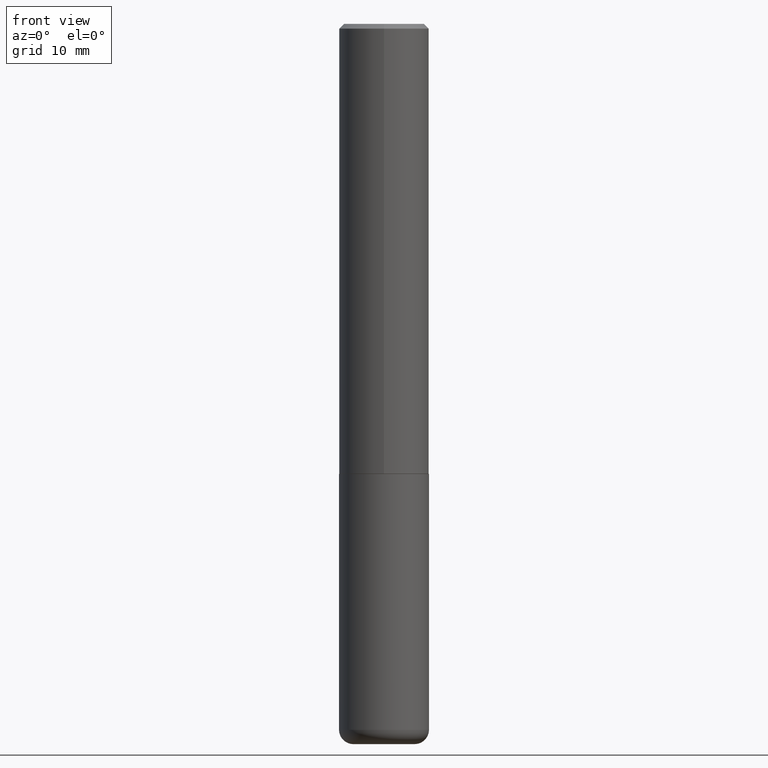
[diagram: clean part render]
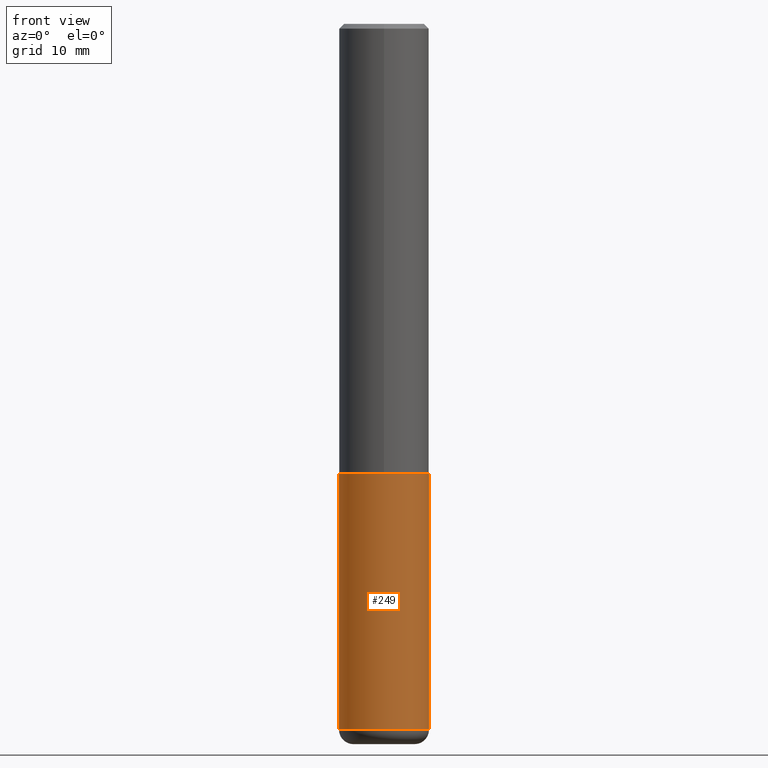
[diagram: same view with one face highlighted and labeled with its STEP entity id]
A machine part, front view. The second image highlights one B-rep face of the part: STEP entity #249.
In plain terms, the highlighted cylindrical surface (partial cylindrical patch) has radius 4.7625 mm, axis along (-0, 0, 1).
Its self-contained STEP definition (entity closure, byte-faithful):
#28 = CARTESIAN_POINT ( 'NONE',  ( 0.1875000000000000278, -7.855833012397073715E-15, -1.875000000000000000 ) ) ;
#39 = EDGE_CURVE ( 'NONE', #283, #106, #315, .T. ) ;
#50 = VERTEX_POINT ( 'NONE', #188 ) ;
#56 = LINE ( 'NONE', #223, #301 ) ;
#59 = DIRECTION ( 'NONE',  ( -2.445468806185136597E-29, 3.491481338843145583E-15, 1.000000000000000000 ) ) ;
#80 = EDGE_LOOP ( 'NONE', ( #212, #246, #179, #316 ) ) ;
#82 = EDGE_CURVE ( 'NONE', #50, #106, #56, .T. ) ;
#87 = EDGE_CURVE ( 'NONE', #210, #283, #383, .T. ) ;
#94 = CARTESIAN_POINT ( 'NONE',  ( 4.585254011597131119E-29, -6.546527510330898707E-15, -1.875000000000000000 ) ) ;
#96 = DIRECTION ( 'NONE',  ( 1.000000000000000000, -6.982962677686265922E-15, 4.876176775795935793E-29 ) ) ;
#99 = DIRECTION ( 'NONE',  ( -2.445468806185136597E-29, 3.491481338843145583E-15, 1.000000000000000000 ) ) ;
#106 = VERTEX_POINT ( 'NONE', #28 ) ;
#108 = AXIS2_PLACEMENT_3D ( 'NONE', #394, #204, #160 ) ;
#124 = VECTOR ( 'NONE', #355, 39.37007874015748143 ) ;
#160 = DIRECTION ( 'NONE',  ( 1.000000000000000000, -6.982962677686260400E-15, 0.000000000000000000 ) ) ;
#165 = EDGE_CURVE ( 'NONE', #210, #50, #296, .T. ) ;
#179 = ORIENTED_EDGE ( 'NONE', *, *, #82, .T. ) ;
#182 = AXIS2_PLACEMENT_3D ( 'NONE', #94, #59, #286 ) ;
#188 = CARTESIAN_POINT ( 'NONE',  ( 0.1875000000000000278, -1.157426063826502304E-14, -2.940000000000000391 ) ) ;
#204 = DIRECTION ( 'NONE',  ( -2.445468806185136597E-29, 3.491481338843145583E-15, 1.000000000000000000 ) ) ;
#210 = VERTEX_POINT ( 'NONE', #268 ) ;
#212 = ORIENTED_EDGE ( 'NONE', *, *, #87, .F. ) ;
#223 = CARTESIAN_POINT ( 'NONE',  ( 0.1875000000000000555, -1.309305502066175205E-15, 9.142831454617382414E-30 ) ) ;
#246 = ORIENTED_EDGE ( 'NONE', *, *, #165, .T. ) ;
#249 = ADVANCED_FACE ( 'NONE', ( #330 ), #388, .T. ) ;
#262 = CARTESIAN_POINT ( 'NONE',  ( 0.000000000000000000, 0.000000000000000000, 0.000000000000000000 ) ) ;
#268 = CARTESIAN_POINT ( 'NONE',  ( -0.1875000000000000278, -8.932687506648661766E-15, -2.940000000000000391 ) ) ;
#283 = VERTEX_POINT ( 'NONE', #309 ) ;
#286 = DIRECTION ( 'NONE',  ( 1.000000000000000000, -6.982962677686266711E-15, 0.000000000000000000 ) ) ;
#288 = CARTESIAN_POINT ( 'NONE',  ( -0.1875000000000000555, 1.332267629550188243E-15, -9.223003294227950793E-30 ) ) ;
#296 = CIRCLE ( 'NONE', #108, 0.1875000000000000555 ) ;
#301 = VECTOR ( 'NONE', #350, 39.37007874015748143 ) ;
#309 = CARTESIAN_POINT ( 'NONE',  ( -0.1875000000000000278, -7.073473693714685523E-15, -1.875000000000000000 ) ) ;
#310 = AXIS2_PLACEMENT_3D ( 'NONE', #262, #99, #96 ) ;
#315 = CIRCLE ( 'NONE', #182, 0.1875000000000000278 ) ;
#316 = ORIENTED_EDGE ( 'NONE', *, *, #39, .F. ) ;
#330 = FACE_OUTER_BOUND ( 'NONE', #80, .T. ) ;
#350 = DIRECTION ( 'NONE',  ( -2.445468806185136877E-29, 3.491481338843145188E-15, 1.000000000000000000 ) ) ;
#355 = DIRECTION ( 'NONE',  ( -2.445468806185136877E-29, 3.491481338843145188E-15, 1.000000000000000000 ) ) ;
#383 = LINE ( 'NONE', #288, #124 ) ;
#388 = CYLINDRICAL_SURFACE ( 'NONE', #310, 0.1875000000000000555 ) ;
#394 = CARTESIAN_POINT ( 'NONE',  ( 7.189678290184301639E-29, -1.026495513619884961E-14, -2.940000000000000391 ) ) ;